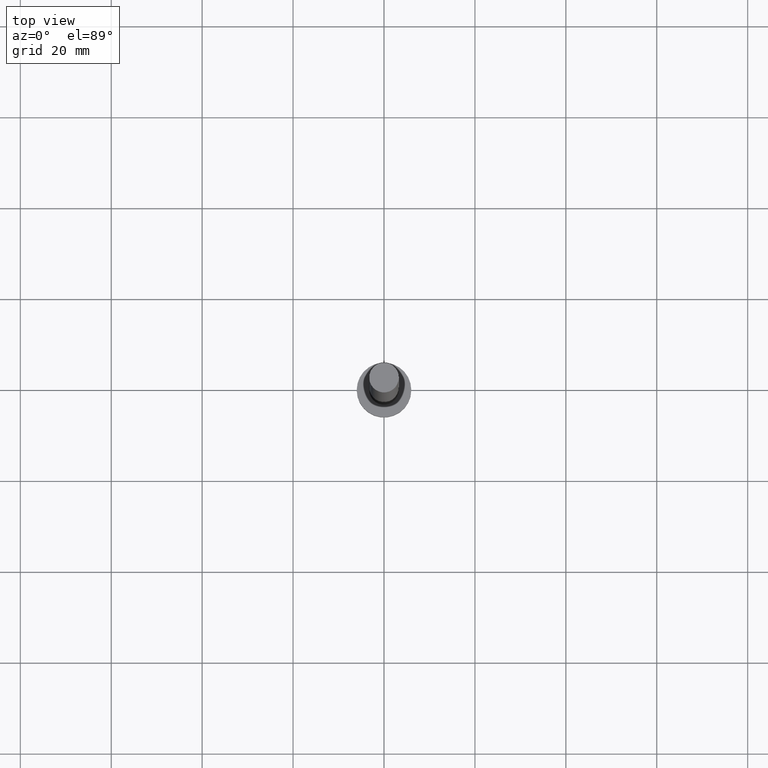
[diagram: clean part render]
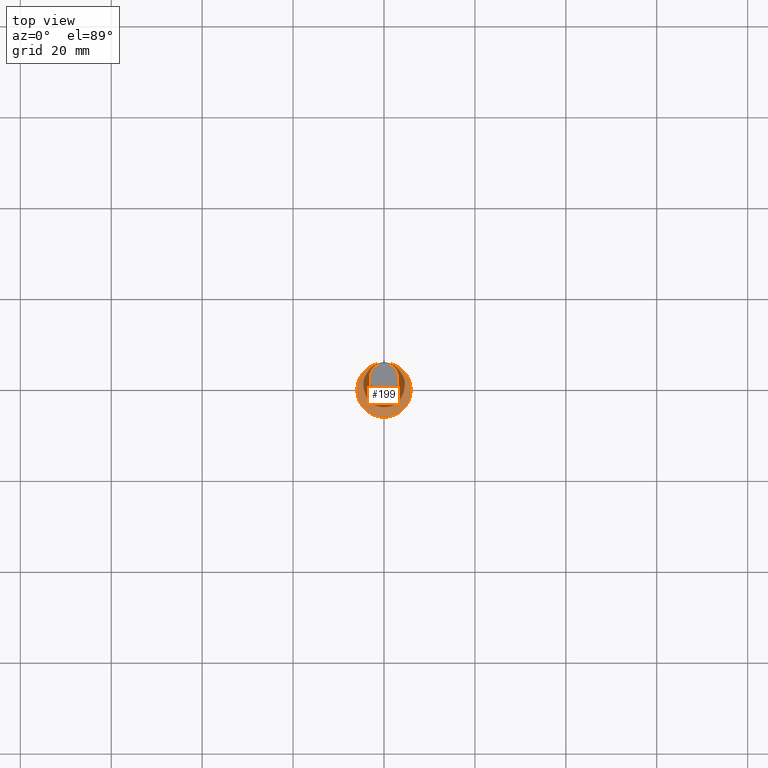
[diagram: same view with one face highlighted and labeled with its STEP entity id]
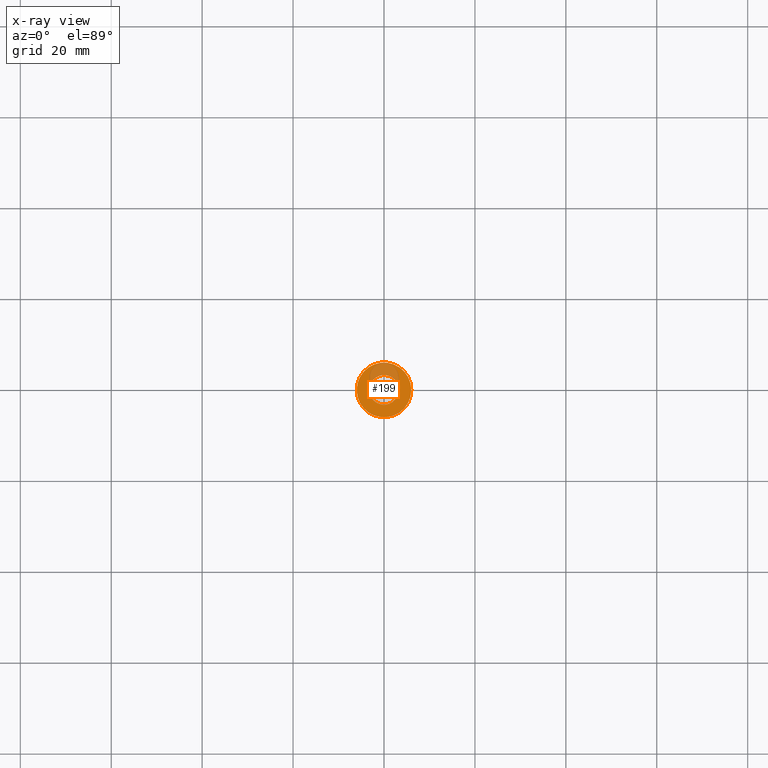
[diagram: x-ray of the same camera — body ghosted, the highlighted face saturated]
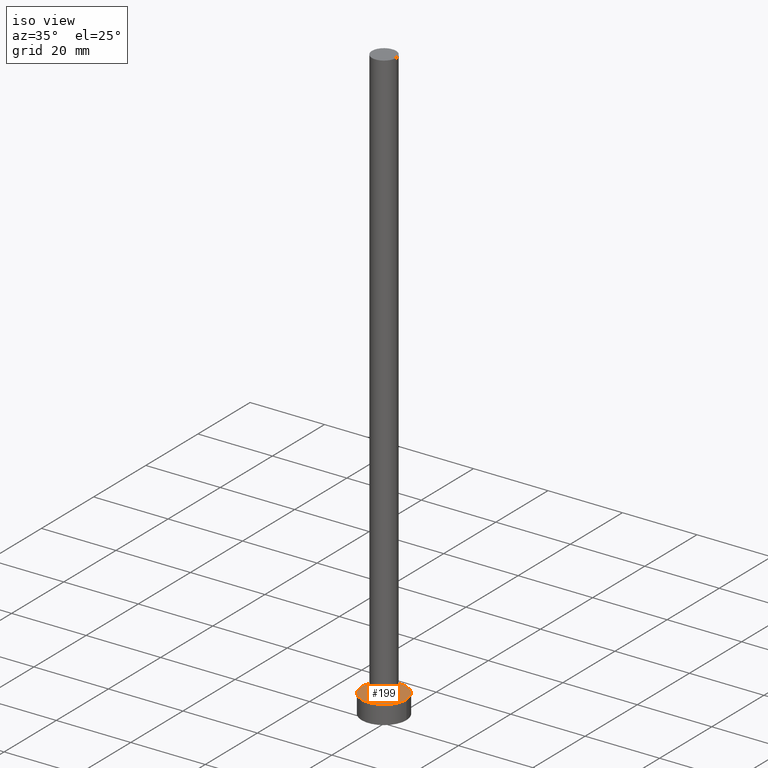
[diagram: same view with one face highlighted and labeled with its STEP entity id]
A machine part, top view. The second image highlights one B-rep face of the part: STEP entity #199.
The next image is the same camera in x-ray: the body ghosted, the highlighted face saturated — about 22% of this face is hidden behind the body in this view.
A second angle (iso view) of the same face is appended — the face is thin or edge-on in the first view.
In plain terms, the highlighted planar face has unit normal (0, 0, 1).
Its self-contained STEP definition (entity closure, byte-faithful):
#3 = CARTESIAN_POINT ( 'NONE',  ( 3.250000000000000444, 3.980102097228898231E-16, 5.000000000000000000 ) ) ;
#14 = CARTESIAN_POINT ( 'NONE',  ( 0.000000000000000000, 0.000000000000000000, 5.000000000000000000 ) ) ;
#22 = AXIS2_PLACEMENT_3D ( 'NONE', #146, #234, #180 ) ;
#31 = AXIS2_PLACEMENT_3D ( 'NONE', #94, #120, #179 ) ;
#33 = CARTESIAN_POINT ( 'NONE',  ( -3.250000000000000444, 0.000000000000000000, 5.000000000000000000 ) ) ;
#58 = FACE_OUTER_BOUND ( 'NONE', #62, .T. ) ;
#62 = EDGE_LOOP ( 'NONE', ( #223, #154 ) ) ;
#74 = DIRECTION ( 'NONE',  ( 0.000000000000000000, 0.000000000000000000, 1.000000000000000000 ) ) ;
#76 = VERTEX_POINT ( 'NONE', #197 ) ;
#77 = ORIENTED_EDGE ( 'NONE', *, *, #236, .F. ) ;
#79 = ORIENTED_EDGE ( 'NONE', *, *, #166, .F. ) ;
#82 = CIRCLE ( 'NONE', #160, 3.250000000000000444 ) ;
#86 = EDGE_CURVE ( 'NONE', #76, #243, #121, .T. ) ;
#94 = CARTESIAN_POINT ( 'NONE',  ( 0.000000000000000000, 0.000000000000000000, 5.000000000000000000 ) ) ;
#97 = CARTESIAN_POINT ( 'NONE',  ( -6.000000000000000888, 0.000000000000000000, 5.000000000000000000 ) ) ;
#117 = EDGE_LOOP ( 'NONE', ( #79, #77 ) ) ;
#120 = DIRECTION ( 'NONE',  ( 0.000000000000000000, 0.000000000000000000, 1.000000000000000000 ) ) ;
#121 = CIRCLE ( 'NONE', #213, 6.000000000000000888 ) ;
#125 = FACE_BOUND ( 'NONE', #117, .T. ) ;
#132 = CIRCLE ( 'NONE', #22, 6.000000000000000888 ) ;
#145 = CARTESIAN_POINT ( 'NONE',  ( 0.000000000000000000, 0.000000000000000000, 5.000000000000000000 ) ) ;
#146 = CARTESIAN_POINT ( 'NONE',  ( 0.000000000000000000, 0.000000000000000000, 5.000000000000000000 ) ) ;
#152 = CARTESIAN_POINT ( 'NONE',  ( 0.000000000000000000, 0.000000000000000000, 5.000000000000000000 ) ) ;
#154 = ORIENTED_EDGE ( 'NONE', *, *, #86, .T. ) ;
#160 = AXIS2_PLACEMENT_3D ( 'NONE', #152, #242, #222 ) ;
#166 = EDGE_CURVE ( 'NONE', #198, #193, #252, .T. ) ;
#172 = PLANE ( 'NONE',  #204 ) ;
#179 = DIRECTION ( 'NONE',  ( 1.000000000000000000, 0.000000000000000000, 0.000000000000000000 ) ) ;
#180 = DIRECTION ( 'NONE',  ( 1.000000000000000000, 0.000000000000000000, 0.000000000000000000 ) ) ;
#193 = VERTEX_POINT ( 'NONE', #3 ) ;
#195 = DIRECTION ( 'NONE',  ( 1.000000000000000000, 0.000000000000000000, -0.000000000000000000 ) ) ;
#196 = DIRECTION ( 'NONE',  ( 0.000000000000000000, 0.000000000000000000, 1.000000000000000000 ) ) ;
#197 = CARTESIAN_POINT ( 'NONE',  ( 6.000000000000000888, 7.347880794884120722E-16, 5.000000000000000000 ) ) ;
#198 = VERTEX_POINT ( 'NONE', #33 ) ;
#199 = ADVANCED_FACE ( 'NONE', ( #125, #58 ), #172, .T. ) ;
#204 = AXIS2_PLACEMENT_3D ( 'NONE', #14, #74, #195 ) ;
#213 = AXIS2_PLACEMENT_3D ( 'NONE', #145, #196, #253 ) ;
#222 = DIRECTION ( 'NONE',  ( 1.000000000000000000, 0.000000000000000000, 0.000000000000000000 ) ) ;
#223 = ORIENTED_EDGE ( 'NONE', *, *, #224, .T. ) ;
#224 = EDGE_CURVE ( 'NONE', #243, #76, #132, .T. ) ;
#234 = DIRECTION ( 'NONE',  ( 0.000000000000000000, 0.000000000000000000, 1.000000000000000000 ) ) ;
#236 = EDGE_CURVE ( 'NONE', #193, #198, #82, .T. ) ;
#242 = DIRECTION ( 'NONE',  ( 0.000000000000000000, 0.000000000000000000, 1.000000000000000000 ) ) ;
#243 = VERTEX_POINT ( 'NONE', #97 ) ;
#252 = CIRCLE ( 'NONE', #31, 3.250000000000000444 ) ;
#253 = DIRECTION ( 'NONE',  ( 1.000000000000000000, 0.000000000000000000, 0.000000000000000000 ) ) ;